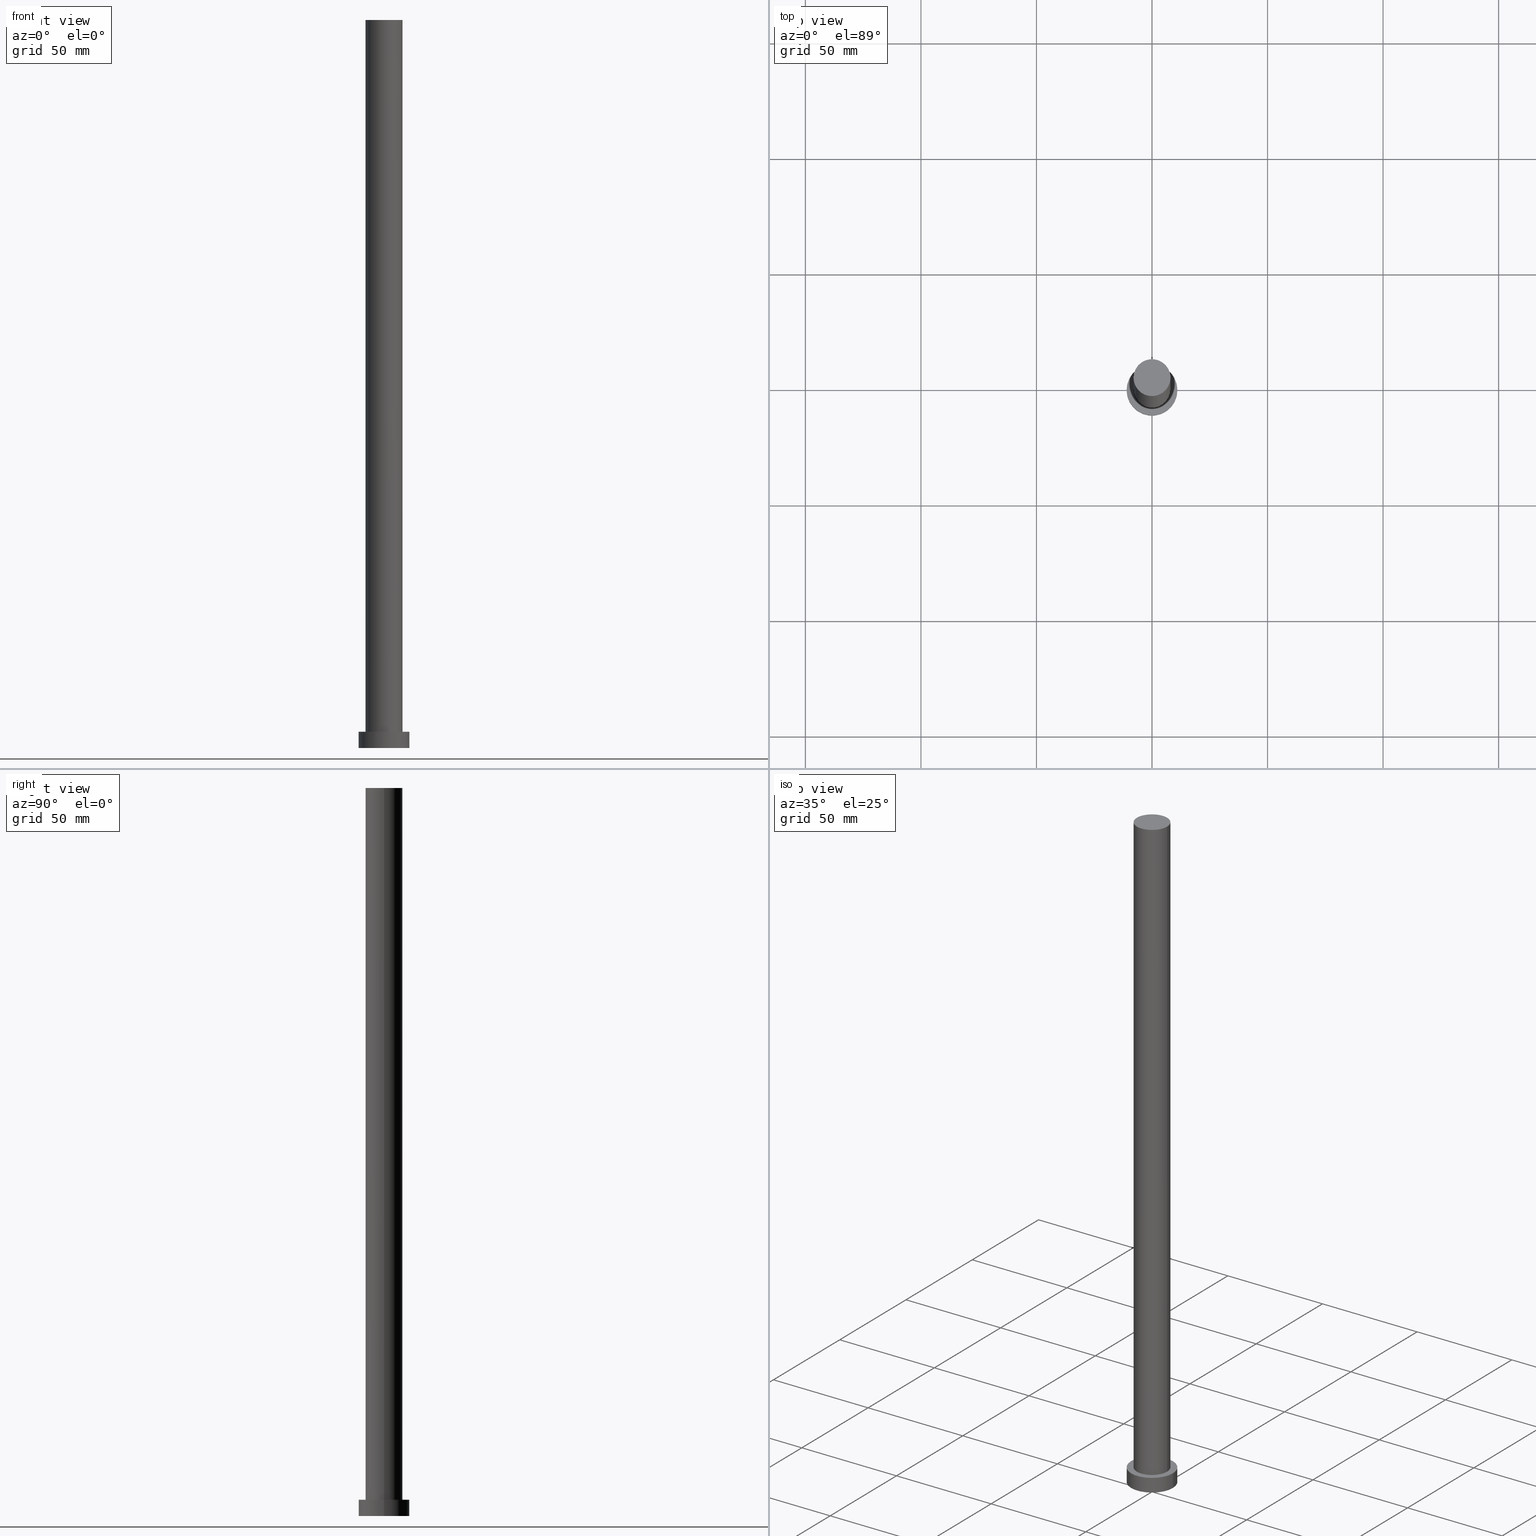
[diagram: canonical four-view strip — front | top / right | iso, engineering-drawing reading convention]
A machine part, canonical four-view strip (front | top / right | iso — engineering-drawing reading convention). The complete STEP part file that produces these views, byte-faithful:
ISO-10303-21;
HEADER;
FILE_DESCRIPTION (( 'STEP AP203' ),
    '1' );
FILE_NAME ('de49.STEP',
    '2023-02-12T10:43:42',
    ( '' ),
    ( '' ),
    'SwSTEP 2.0',
    'SolidWorks 2019',
    '' );
FILE_SCHEMA (( 'CONFIG_CONTROL_DESIGN' ));
ENDSEC;

DATA;
#1 = ORGANIZATION ( 'NEUR�EN�', 'NEUR�EN�', '' ) ;
#2 = PERSON_AND_ORGANIZATION ( #162, #1 ) ;
#3 = COORDINATED_UNIVERSAL_TIME_OFFSET ( 1, 0, .AHEAD. ) ;
#4 = EDGE_CURVE ( 'NONE', #50, #69, #110, .T. ) ;
#5 = APPROVAL_STATUS ( 'not_yet_approved' ) ;
#6 = PERSON_AND_ORGANIZATION_ROLE ( 'design_owner' ) ;
#7 = LOCAL_TIME ( 11, 43, 42.00000000000000000, #3 ) ;
#8 = APPROVAL_PERSON_ORGANIZATION ( #22, #251, #104 ) ;
#9 = AXIS2_PLACEMENT_3D ( 'NONE', #123, #94, #70 ) ;
#10 = EDGE_CURVE ( 'NONE', #89, #50, #25, .T. ) ;
#11 = FACE_OUTER_BOUND ( 'NONE', #143, .T. ) ;
#12 = CYLINDRICAL_SURFACE ( 'NONE', #134, 8.000000000000000000 ) ;
#13 = LOCAL_TIME ( 11, 43, 42.00000000000000000, #57 ) ;
#14 = FACE_OUTER_BOUND ( 'NONE', #15, .T. ) ;
#15 = EDGE_LOOP ( 'NONE', ( #208, #32, #151, #233 ) ) ;
#16 = CARTESIAN_POINT ( 'NONE',  ( 0.000000000000000000, 0.000000000000000000, 315.0000000000000000 ) ) ;
#17 =( NAMED_UNIT ( * ) SI_UNIT ( $, .STERADIAN. ) SOLID_ANGLE_UNIT ( ) );
#18 = CARTESIAN_POINT ( 'NONE',  ( 0.000000000000000000, 0.000000000000000000, 7.000000000000000000 ) ) ;
#19 =( GEOMETRIC_REPRESENTATION_CONTEXT ( 3 ) GLOBAL_UNCERTAINTY_ASSIGNED_CONTEXT ( ( #81 ) ) GLOBAL_UNIT_ASSIGNED_CONTEXT ( ( #165, #168, #17 ) ) REPRESENTATION_CONTEXT ( 'NONE', 'WORKASPACE' ) );
#20 = SECURITY_CLASSIFICATION_LEVEL ( 'unclassified' ) ;
#21 = EDGE_LOOP ( 'NONE', ( #130, #65 ) ) ;
#22 = PERSON_AND_ORGANIZATION ( #162, #1 ) ;
#23 = ORIENTED_EDGE ( 'NONE', *, *, #161, .T. ) ;
#24 = PERSON_AND_ORGANIZATION_ROLE ( 'design_supplier' ) ;
#25 = CIRCLE ( 'NONE', #9, 8.000000000000000000 ) ;
#26 = CARTESIAN_POINT ( 'NONE',  ( -8.000000000000000000, 0.000000000000000000, 7.000000000000000000 ) ) ;
#27 = AXIS2_PLACEMENT_3D ( 'NONE', #184, #247, #142 ) ;
#28 = LINE ( 'NONE', #107, #246 ) ;
#29 = CARTESIAN_POINT ( 'NONE',  ( 0.000000000000000000, 0.000000000000000000, 7.000000000000000000 ) ) ;
#30 = EDGE_LOOP ( 'NONE', ( #121, #217, #222, #103 ) ) ;
#31 = AXIS2_PLACEMENT_3D ( 'NONE', #252, #127, #188 ) ;
#32 = ORIENTED_EDGE ( 'NONE', *, *, #10, .F. ) ;
#33 = CC_DESIGN_PERSON_AND_ORGANIZATION_ASSIGNMENT ( #195, #218, ( #36 ) ) ;
#34 = ORIENTED_EDGE ( 'NONE', *, *, #67, .T. ) ;
#35 = DIRECTION ( 'NONE',  ( -1.000000000000000000, 0.000000000000000000, 0.000000000000000000 ) ) ;
#36 = PRODUCT_DEFINITION_FORMATION_WITH_SPECIFIED_SOURCE ( 'LIBOVOLN�', '', #108, .NOT_KNOWN. ) ;
#37 = DIRECTION ( 'NONE',  ( -1.000000000000000000, 0.000000000000000000, 0.000000000000000000 ) ) ;
#38 = EDGE_CURVE ( 'NONE', #160, #86, #221, .T. ) ;
#39 = CYLINDRICAL_SURFACE ( 'NONE', #132, 8.000000000000000000 ) ;
#40 = FACE_OUTER_BOUND ( 'NONE', #30, .T. ) ;
#41 = CALENDAR_DATE ( 2023, 12, 2 ) ;
#42 = APPROVAL_STATUS ( 'not_yet_approved' ) ;
#43 = EDGE_LOOP ( 'NONE', ( #223, #126 ) ) ;
#44 = CARTESIAN_POINT ( 'NONE',  ( -8.000000000000000000, 0.000000000000000000, 315.0000000000000000 ) ) ;
#45 = CIRCLE ( 'NONE', #232, 8.000000000000000000 ) ;
#46 = COORDINATED_UNIVERSAL_TIME_OFFSET ( 1, 0, .AHEAD. ) ;
#47 = ADVANCED_FACE ( 'NONE', ( #14 ), #12, .T. ) ;
#48 = CARTESIAN_POINT ( 'NONE',  ( 11.00000000000000000, 1.347111479062088405E-15, 7.000000000000000000 ) ) ;
#49 = CARTESIAN_POINT ( 'NONE',  ( 8.000000000000000000, 9.797174393178825657E-16, 315.0000000000000000 ) ) ;
#50 = VERTEX_POINT ( 'NONE', #186 ) ;
#51 = CARTESIAN_POINT ( 'NONE',  ( 0.000000000000000000, 0.000000000000000000, 0.000000000000000000 ) ) ;
#52 = DESIGN_CONTEXT ( 'detailed design', #228, 'design' ) ;
#53 = DIRECTION ( 'NONE',  ( -0.000000000000000000, -0.000000000000000000, -1.000000000000000000 ) ) ;
#54 = ADVANCED_FACE ( 'NONE', ( #158, #243 ), #64, .T. ) ;
#55 = DIRECTION ( 'NONE',  ( 1.000000000000000000, 0.000000000000000000, 0.000000000000000000 ) ) ;
#56 = VECTOR ( 'NONE', #112, 1000.000000000000000 ) ;
#57 = COORDINATED_UNIVERSAL_TIME_OFFSET ( 1, 0, .AHEAD. ) ;
#58 = EDGE_LOOP ( 'NONE', ( #139, #34 ) ) ;
#59 = DIRECTION ( 'NONE',  ( 1.000000000000000000, 0.000000000000000000, 0.000000000000000000 ) ) ;
#60 = DIRECTION ( 'NONE',  ( 0.000000000000000000, 0.000000000000000000, 1.000000000000000000 ) ) ;
#61 = CARTESIAN_POINT ( 'NONE',  ( 0.000000000000000000, 0.000000000000000000, 0.000000000000000000 ) ) ;
#62 = LOCAL_TIME ( 11, 43, 42.00000000000000000, #172 ) ;
#63 = EDGE_CURVE ( 'NONE', #193, #141, #212, .T. ) ;
#64 = PLANE ( 'NONE',  #68 ) ;
#65 = ORIENTED_EDGE ( 'NONE', *, *, #202, .F. ) ;
#66 = PRODUCT_DEFINITION_SHAPE ( 'NONE', 'NONE',  #166 ) ;
#67 = EDGE_CURVE ( 'NONE', #141, #193, #200, .T. ) ;
#68 = AXIS2_PLACEMENT_3D ( 'NONE', #136, #205, #226 ) ;
#69 = VERTEX_POINT ( 'NONE', #131 ) ;
#70 = DIRECTION ( 'NONE',  ( 1.000000000000000000, 0.000000000000000000, 0.000000000000000000 ) ) ;
#71 = DIRECTION ( 'NONE',  ( -0.000000000000000000, -0.000000000000000000, -1.000000000000000000 ) ) ;
#72 = EDGE_CURVE ( 'NONE', #89, #91, #80, .T. ) ;
#73 = CARTESIAN_POINT ( 'NONE',  ( -11.00000000000000000, 0.000000000000000000, 0.000000000000000000 ) ) ;
#74 = DIRECTION ( 'NONE',  ( 0.000000000000000000, 0.000000000000000000, 1.000000000000000000 ) ) ;
#75 = CC_DESIGN_APPROVAL ( #76, ( #36 ) ) ;
#76 = APPROVAL ( #42, 'NEUR�EN�' ) ;
#77 = CARTESIAN_POINT ( 'NONE',  ( -11.00000000000000000, 0.000000000000000000, 7.000000000000000000 ) ) ;
#78 = CARTESIAN_POINT ( 'NONE',  ( 0.000000000000000000, 0.000000000000000000, 7.000000000000000000 ) ) ;
#79 = PERSON_AND_ORGANIZATION ( #162, #1 ) ;
#80 = LINE ( 'NONE', #44, #192 ) ;
#81 = UNCERTAINTY_MEASURE_WITH_UNIT (LENGTH_MEASURE( 1.000000000000000082E-05 ), #165, 'distance_accuracy_value', 'NONE');
#82 = DATE_TIME_ROLE ( 'creation_date' ) ;
#83 = ORIENTED_EDGE ( 'NONE', *, *, #211, .F. ) ;
#84 = CALENDAR_DATE ( 2023, 12, 2 ) ;
#85 = DIRECTION ( 'NONE',  ( 0.000000000000000000, 0.000000000000000000, 1.000000000000000000 ) ) ;
#86 = VERTEX_POINT ( 'NONE', #220 ) ;
#87 = APPROVAL_ROLE ( '' ) ;
#88 = APPROVAL_STATUS ( 'not_yet_approved' ) ;
#89 = VERTEX_POINT ( 'NONE', #219 ) ;
#90 = PRODUCT_RELATED_PRODUCT_CATEGORY ( 'detail', '', ( #108 ) ) ;
#91 = VERTEX_POINT ( 'NONE', #26 ) ;
#92 = ADVANCED_FACE ( 'NONE', ( #179 ), #191, .T. ) ;
#93 = DIRECTION ( 'NONE',  ( -0.000000000000000000, -0.000000000000000000, -1.000000000000000000 ) ) ;
#94 = DIRECTION ( 'NONE',  ( 0.000000000000000000, 0.000000000000000000, 1.000000000000000000 ) ) ;
#95 = CC_DESIGN_APPROVAL ( #159, ( #166 ) ) ;
#96 = CARTESIAN_POINT ( 'NONE',  ( 0.000000000000000000, 0.000000000000000000, 315.0000000000000000 ) ) ;
#97 = DIRECTION ( 'NONE',  ( 1.000000000000000000, 0.000000000000000000, 0.000000000000000000 ) ) ;
#98 = AXIS2_PLACEMENT_3D ( 'NONE', #18, #185, #97 ) ;
#99 = PERSON_AND_ORGANIZATION ( #162, #1 ) ;
#100 = APPROVAL_ROLE ( '' ) ;
#101 = EDGE_CURVE ( 'NONE', #69, #91, #105, .T. ) ;
#102 = APPROVAL_PERSON_ORGANIZATION ( #99, #76, #87 ) ;
#103 = ORIENTED_EDGE ( 'NONE', *, *, #72, .F. ) ;
#104 = APPROVAL_ROLE ( '' ) ;
#105 = CIRCLE ( 'NONE', #144, 8.000000000000000000 ) ;
#106 = APPROVAL_DATE_TIME ( #171, #159 ) ;
#107 = CARTESIAN_POINT ( 'NONE',  ( 11.00000000000000000, 1.347111479062088405E-15, 7.000000000000000000 ) ) ;
#108 = PRODUCT ( 'de49', 'de49', '', ( #178 ) ) ;
#109 = APPROVAL_PERSON_ORGANIZATION ( #214, #159, #100 ) ;
#110 = LINE ( 'NONE', #49, #56 ) ;
#111 = CC_DESIGN_APPROVAL ( #251, ( #118 ) ) ;
#112 = DIRECTION ( 'NONE',  ( -0.000000000000000000, -0.000000000000000000, -1.000000000000000000 ) ) ;
#113 = DIRECTION ( 'NONE',  ( 1.000000000000000000, 0.000000000000000000, -0.000000000000000000 ) ) ;
#114 = APPLICATION_PROTOCOL_DEFINITION ( 'international standard', 'config_control_design', 1994, #206 ) ;
#115 = CARTESIAN_POINT ( 'NONE',  ( 0.000000000000000000, 0.000000000000000000, 315.0000000000000000 ) ) ;
#116 = LOCAL_TIME ( 11, 43, 42.00000000000000000, #46 ) ;
#117 = CC_DESIGN_PERSON_AND_ORGANIZATION_ASSIGNMENT ( #175, #119, ( #166 ) ) ;
#118 = SECURITY_CLASSIFICATION ( '', '', #20 ) ;
#119 = PERSON_AND_ORGANIZATION_ROLE ( 'creator' ) ;
#120 = DATE_AND_TIME ( #41, #137 ) ;
#121 = ORIENTED_EDGE ( 'NONE', *, *, #152, .F. ) ;
#122 = CIRCLE ( 'NONE', #31, 11.00000000000000000 ) ;
#123 = CARTESIAN_POINT ( 'NONE',  ( 0.000000000000000000, 0.000000000000000000, 315.0000000000000000 ) ) ;
#124 = EDGE_LOOP ( 'NONE', ( #207, #176, #173, #248 ) ) ;
#125 = CYLINDRICAL_SURFACE ( 'NONE', #27, 11.00000000000000000 ) ;
#126 = ORIENTED_EDGE ( 'NONE', *, *, #152, .T. ) ;
#127 = DIRECTION ( 'NONE',  ( 0.000000000000000000, 0.000000000000000000, 1.000000000000000000 ) ) ;
#128 = SHAPE_DEFINITION_REPRESENTATION ( #66, #194 ) ;
#129 = CALENDAR_DATE ( 2023, 12, 2 ) ;
#130 = ORIENTED_EDGE ( 'NONE', *, *, #38, .F. ) ;
#131 = CARTESIAN_POINT ( 'NONE',  ( 8.000000000000000000, 9.797174393178825657E-16, 7.000000000000000000 ) ) ;
#132 = AXIS2_PLACEMENT_3D ( 'NONE', #16, #71, #37 ) ;
#133 = PERSON_AND_ORGANIZATION ( #162, #1 ) ;
#134 = AXIS2_PLACEMENT_3D ( 'NONE', #224, #53, #35 ) ;
#135 = DIRECTION ( 'NONE',  ( 0.000000000000000000, 0.000000000000000000, 1.000000000000000000 ) ) ;
#136 = CARTESIAN_POINT ( 'NONE',  ( 0.000000000000000000, 0.000000000000000000, 7.000000000000000000 ) ) ;
#137 = LOCAL_TIME ( 11, 43, 42.00000000000000000, #254 ) ;
#138 = ADVANCED_FACE ( 'NONE', ( #11 ), #125, .T. ) ;
#139 = ORIENTED_EDGE ( 'NONE', *, *, #63, .T. ) ;
#140 = CC_DESIGN_DATE_AND_TIME_ASSIGNMENT ( #234, #155, ( #118 ) ) ;
#141 = VERTEX_POINT ( 'NONE', #48 ) ;
#142 = DIRECTION ( 'NONE',  ( -1.000000000000000000, 0.000000000000000000, 0.000000000000000000 ) ) ;
#143 = EDGE_LOOP ( 'NONE', ( #163, #201, #23, #237 ) ) ;
#144 = AXIS2_PLACEMENT_3D ( 'NONE', #203, #135, #181 ) ;
#145 = DIRECTION ( 'NONE',  ( 1.000000000000000000, 0.000000000000000000, -0.000000000000000000 ) ) ;
#146 = PLANE ( 'NONE',  #244 ) ;
#147 = FACE_OUTER_BOUND ( 'NONE', #43, .T. ) ;
#148 = EDGE_CURVE ( 'NONE', #141, #86, #28, .T. ) ;
#149 = DATE_AND_TIME ( #129, #13 ) ;
#150 = EDGE_LOOP ( 'NONE', ( #83, #183 ) ) ;
#151 = ORIENTED_EDGE ( 'NONE', *, *, #72, .T. ) ;
#152 = EDGE_CURVE ( 'NONE', #50, #89, #45, .T. ) ;
#153 = DATE_AND_TIME ( #84, #62 ) ;
#154 = AXIS2_PLACEMENT_3D ( 'NONE', #236, #60, #157 ) ;
#155 = DATE_TIME_ROLE ( 'classification_date' ) ;
#156 = DIRECTION ( 'NONE',  ( 1.000000000000000000, 0.000000000000000000, 0.000000000000000000 ) ) ;
#157 = DIRECTION ( 'NONE',  ( 1.000000000000000000, 0.000000000000000000, 0.000000000000000000 ) ) ;
#158 = FACE_BOUND ( 'NONE', #150, .T. ) ;
#159 = APPROVAL ( #88, 'NEUR�EN�' ) ;
#160 = VERTEX_POINT ( 'NONE', #73 ) ;
#161 = EDGE_CURVE ( 'NONE', #193, #160, #253, .T. ) ;
#162 = PERSON ( 'NEUR�EN�', 'NEUR�EN�', 'NEUR�EN�', ('NEUR�EN�'), ('NEUR�EN�'), ('NEUR�EN�') ) ;
#163 = ORIENTED_EDGE ( 'NONE', *, *, #148, .F. ) ;
#164 = AXIS2_PLACEMENT_3D ( 'NONE', #210, #190, #145 ) ;
#165 =( LENGTH_UNIT ( ) NAMED_UNIT ( * ) SI_UNIT ( .MILLI., .METRE. ) );
#166 = PRODUCT_DEFINITION ( 'NEZN�M�', '', #36, #52 ) ;
#167 = CLOSED_SHELL ( 'NONE', ( #197, #92, #138, #54, #255, #47, #215 ) ) ;
#168 =( NAMED_UNIT ( * ) PLANE_ANGLE_UNIT ( ) SI_UNIT ( $, .RADIAN. ) );
#169 = CARTESIAN_POINT ( 'NONE',  ( -11.00000000000000000, 0.000000000000000000, 7.000000000000000000 ) ) ;
#170 = DIRECTION ( 'NONE',  ( -0.000000000000000000, -0.000000000000000000, -1.000000000000000000 ) ) ;
#171 = DATE_AND_TIME ( #235, #7 ) ;
#172 = COORDINATED_UNIVERSAL_TIME_OFFSET ( 1, 0, .AHEAD. ) ;
#173 = ORIENTED_EDGE ( 'NONE', *, *, #202, .T. ) ;
#174 = CC_DESIGN_DATE_AND_TIME_ASSIGNMENT ( #120, #82, ( #166 ) ) ;
#175 = PERSON_AND_ORGANIZATION ( #162, #1 ) ;
#176 = ORIENTED_EDGE ( 'NONE', *, *, #148, .T. ) ;
#177 = CALENDAR_DATE ( 2023, 12, 2 ) ;
#178 = MECHANICAL_CONTEXT ( 'NONE', #206, 'mechanical' ) ;
#179 = FACE_OUTER_BOUND ( 'NONE', #124, .T. ) ;
#180 = DIRECTION ( 'NONE',  ( -1.000000000000000000, 0.000000000000000000, 0.000000000000000000 ) ) ;
#181 = DIRECTION ( 'NONE',  ( 1.000000000000000000, 0.000000000000000000, 0.000000000000000000 ) ) ;
#182 = DIRECTION ( 'NONE',  ( 0.000000000000000000, 0.000000000000000000, 1.000000000000000000 ) ) ;
#183 = ORIENTED_EDGE ( 'NONE', *, *, #101, .F. ) ;
#184 = CARTESIAN_POINT ( 'NONE',  ( 0.000000000000000000, 0.000000000000000000, 7.000000000000000000 ) ) ;
#185 = DIRECTION ( 'NONE',  ( 0.000000000000000000, 0.000000000000000000, 1.000000000000000000 ) ) ;
#186 = CARTESIAN_POINT ( 'NONE',  ( 8.000000000000000000, 9.797174393178825657E-16, 315.0000000000000000 ) ) ;
#187 = AXIS2_PLACEMENT_3D ( 'NONE', #29, #93, #180 ) ;
#188 = DIRECTION ( 'NONE',  ( 1.000000000000000000, 0.000000000000000000, 0.000000000000000000 ) ) ;
#189 = CC_DESIGN_PERSON_AND_ORGANIZATION_ASSIGNMENT ( #79, #198, ( #118 ) ) ;
#190 = DIRECTION ( 'NONE',  ( 0.000000000000000000, 0.000000000000000000, 1.000000000000000000 ) ) ;
#191 = CYLINDRICAL_SURFACE ( 'NONE', #187, 11.00000000000000000 ) ;
#192 = VECTOR ( 'NONE', #240, 1000.000000000000000 ) ;
#193 = VERTEX_POINT ( 'NONE', #169 ) ;
#194 = ADVANCED_BREP_SHAPE_REPRESENTATION ( 'de49', ( #241, #204 ), #19 ) ;
#195 = PERSON_AND_ORGANIZATION ( #162, #1 ) ;
#196 = VECTOR ( 'NONE', #250, 1000.000000000000000 ) ;
#197 = ADVANCED_FACE ( 'NONE', ( #40 ), #39, .T. ) ;
#198 = PERSON_AND_ORGANIZATION_ROLE ( 'classification_officer' ) ;
#199 = APPROVAL_DATE_TIME ( #149, #251 ) ;
#200 = CIRCLE ( 'NONE', #154, 11.00000000000000000 ) ;
#201 = ORIENTED_EDGE ( 'NONE', *, *, #63, .F. ) ;
#202 = EDGE_CURVE ( 'NONE', #86, #160, #122, .T. ) ;
#203 = CARTESIAN_POINT ( 'NONE',  ( 0.000000000000000000, 0.000000000000000000, 7.000000000000000000 ) ) ;
#204 = AXIS2_PLACEMENT_3D ( 'NONE', #61, #216, #59 ) ;
#205 = DIRECTION ( 'NONE',  ( 0.000000000000000000, 0.000000000000000000, 1.000000000000000000 ) ) ;
#206 = APPLICATION_CONTEXT ( 'configuration controlled 3d designs of mechanical parts and assemblies' ) ;
#207 = ORIENTED_EDGE ( 'NONE', *, *, #67, .F. ) ;
#208 = ORIENTED_EDGE ( 'NONE', *, *, #4, .F. ) ;
#209 = CC_DESIGN_PERSON_AND_ORGANIZATION_ASSIGNMENT ( #133, #6, ( #108 ) ) ;
#210 = CARTESIAN_POINT ( 'NONE',  ( 0.000000000000000000, 0.000000000000000000, 0.000000000000000000 ) ) ;
#211 = EDGE_CURVE ( 'NONE', #91, #69, #213, .T. ) ;
#212 = CIRCLE ( 'NONE', #242, 11.00000000000000000 ) ;
#213 = CIRCLE ( 'NONE', #98, 8.000000000000000000 ) ;
#214 = PERSON_AND_ORGANIZATION ( #162, #1 ) ;
#215 = ADVANCED_FACE ( 'NONE', ( #147 ), #146, .T. ) ;
#216 = DIRECTION ( 'NONE',  ( 0.000000000000000000, 0.000000000000000000, 1.000000000000000000 ) ) ;
#217 = ORIENTED_EDGE ( 'NONE', *, *, #4, .T. ) ;
#218 = PERSON_AND_ORGANIZATION_ROLE ( 'creator' ) ;
#219 = CARTESIAN_POINT ( 'NONE',  ( -8.000000000000000000, 0.000000000000000000, 315.0000000000000000 ) ) ;
#220 = CARTESIAN_POINT ( 'NONE',  ( 11.00000000000000000, 1.347111479062088405E-15, 0.000000000000000000 ) ) ;
#221 = CIRCLE ( 'NONE', #230, 11.00000000000000000 ) ;
#222 = ORIENTED_EDGE ( 'NONE', *, *, #101, .T. ) ;
#223 = ORIENTED_EDGE ( 'NONE', *, *, #10, .T. ) ;
#224 = CARTESIAN_POINT ( 'NONE',  ( 0.000000000000000000, 0.000000000000000000, 315.0000000000000000 ) ) ;
#225 = DIRECTION ( 'NONE',  ( 0.000000000000000000, 0.000000000000000000, 1.000000000000000000 ) ) ;
#226 = DIRECTION ( 'NONE',  ( 1.000000000000000000, 0.000000000000000000, -0.000000000000000000 ) ) ;
#227 = FACE_OUTER_BOUND ( 'NONE', #21, .T. ) ;
#228 = APPLICATION_CONTEXT ( 'configuration controlled 3d designs of mechanical parts and assemblies' ) ;
#229 = PLANE ( 'NONE',  #164 ) ;
#230 = AXIS2_PLACEMENT_3D ( 'NONE', #51, #182, #245 ) ;
#231 = APPROVAL_DATE_TIME ( #153, #76 ) ;
#232 = AXIS2_PLACEMENT_3D ( 'NONE', #96, #74, #55 ) ;
#233 = ORIENTED_EDGE ( 'NONE', *, *, #211, .T. ) ;
#234 = DATE_AND_TIME ( #177, #116 ) ;
#235 = CALENDAR_DATE ( 2023, 12, 2 ) ;
#236 = CARTESIAN_POINT ( 'NONE',  ( 0.000000000000000000, 0.000000000000000000, 7.000000000000000000 ) ) ;
#237 = ORIENTED_EDGE ( 'NONE', *, *, #38, .T. ) ;
#238 = APPLICATION_PROTOCOL_DEFINITION ( 'international standard', 'config_control_design', 1994, #228 ) ;
#239 = CC_DESIGN_PERSON_AND_ORGANIZATION_ASSIGNMENT ( #2, #24, ( #36 ) ) ;
#240 = DIRECTION ( 'NONE',  ( -0.000000000000000000, -0.000000000000000000, -1.000000000000000000 ) ) ;
#241 = MANIFOLD_SOLID_BREP ( 'P�idat vysunut�m3', #167 ) ;
#242 = AXIS2_PLACEMENT_3D ( 'NONE', #78, #85, #156 ) ;
#243 = FACE_OUTER_BOUND ( 'NONE', #58, .T. ) ;
#244 = AXIS2_PLACEMENT_3D ( 'NONE', #115, #225, #113 ) ;
#245 = DIRECTION ( 'NONE',  ( 1.000000000000000000, 0.000000000000000000, 0.000000000000000000 ) ) ;
#246 = VECTOR ( 'NONE', #170, 1000.000000000000000 ) ;
#247 = DIRECTION ( 'NONE',  ( -0.000000000000000000, -0.000000000000000000, -1.000000000000000000 ) ) ;
#248 = ORIENTED_EDGE ( 'NONE', *, *, #161, .F. ) ;
#249 = CC_DESIGN_SECURITY_CLASSIFICATION ( #118, ( #36 ) ) ;
#250 = DIRECTION ( 'NONE',  ( -0.000000000000000000, -0.000000000000000000, -1.000000000000000000 ) ) ;
#251 = APPROVAL ( #5, 'NEUR�EN�' ) ;
#252 = CARTESIAN_POINT ( 'NONE',  ( 0.000000000000000000, 0.000000000000000000, 0.000000000000000000 ) ) ;
#253 = LINE ( 'NONE', #77, #196 ) ;
#254 = COORDINATED_UNIVERSAL_TIME_OFFSET ( 1, 0, .AHEAD. ) ;
#255 = ADVANCED_FACE ( 'NONE', ( #227 ), #229, .F. ) ;
ENDSEC;
END-ISO-10303-21;
